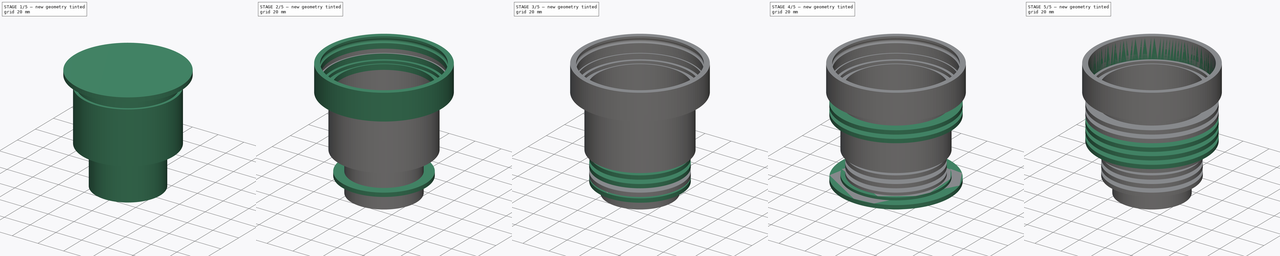
[diagram: build sequence overview — one tinted view per stage of 5, left to right]
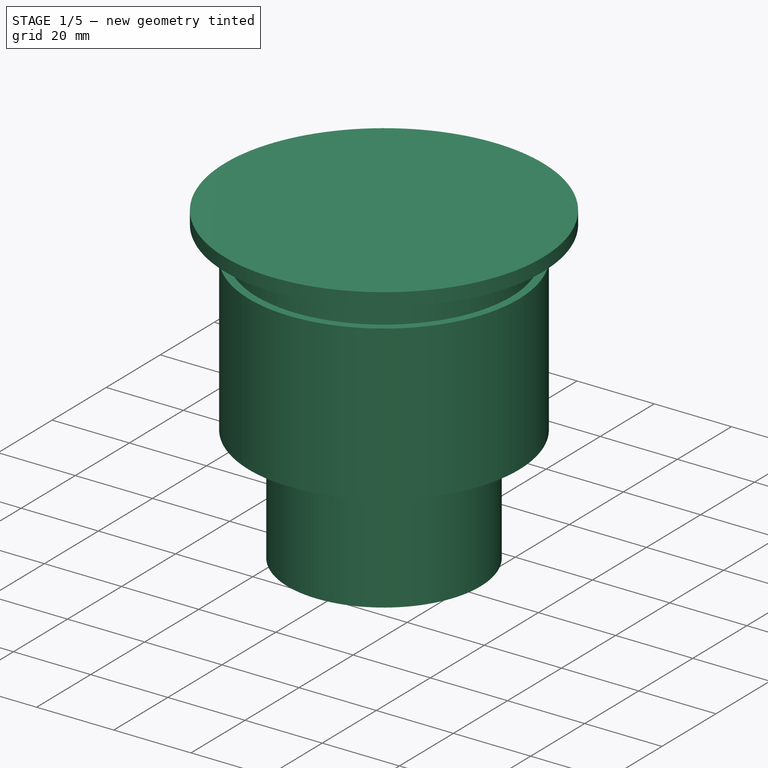
[diagram: stage 1 of 5 — iso view after this stage's code; geometry added in this stage tinted green]
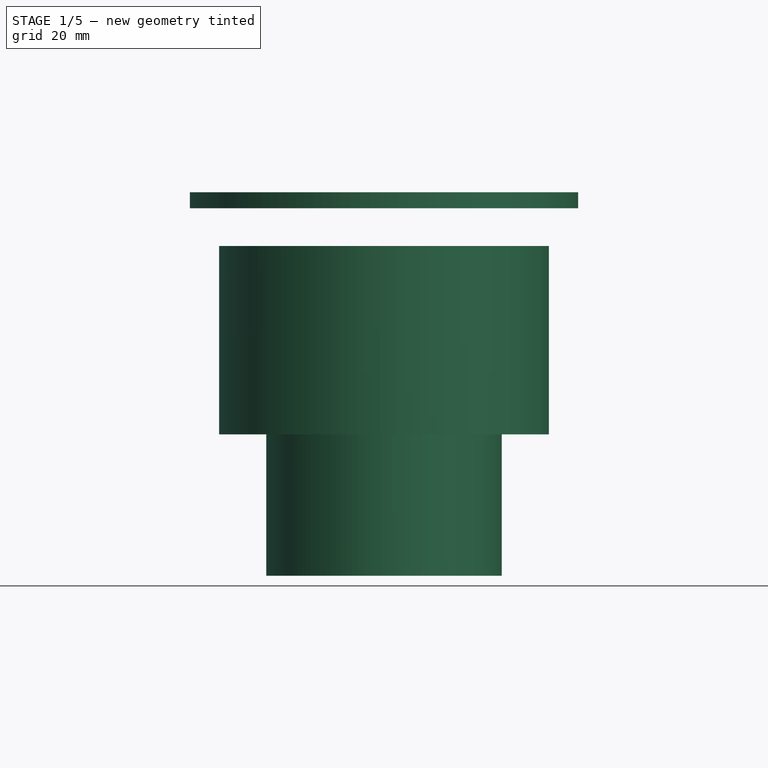
[diagram: stage 1 of 5 — front view after this stage's code; geometry added in this stage tinted green]
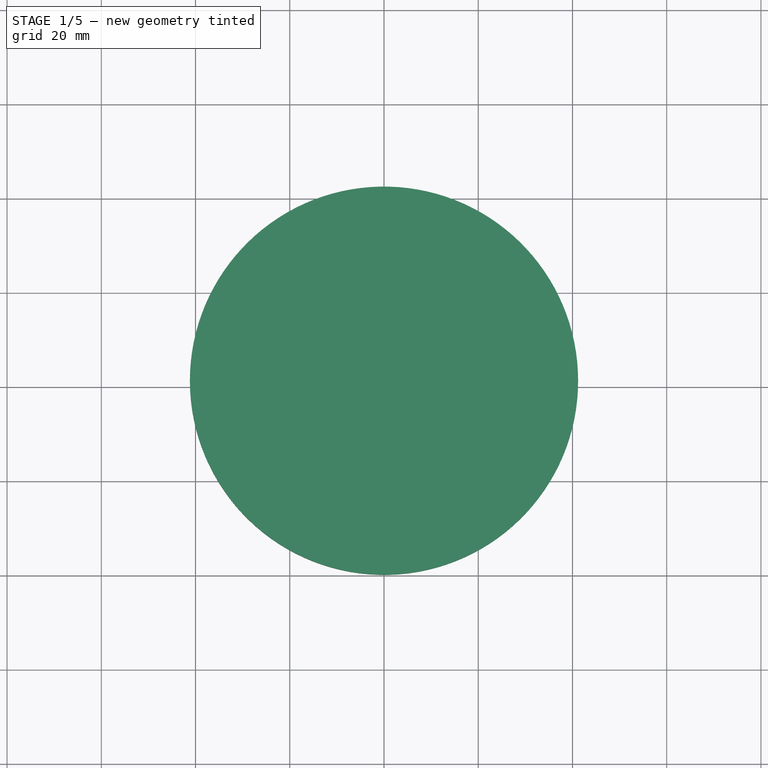
[diagram: stage 1 of 5 — top view after this stage's code; geometry added in this stage tinted green]
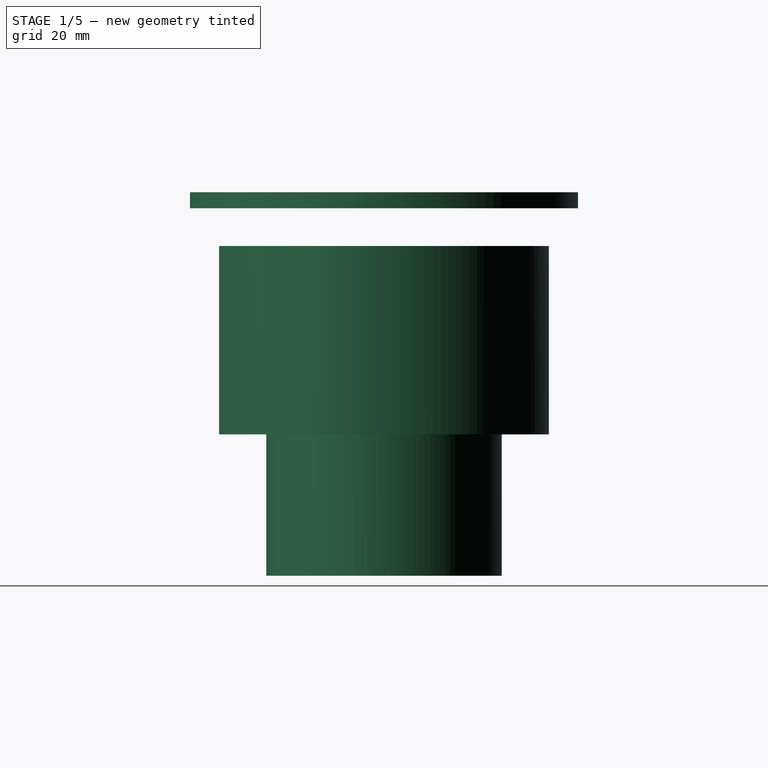
[diagram: stage 1 of 5 — right view after this stage's code; geometry added in this stage tinted green]
FCSTD DOCUMENT  (FreeCAD 0.15R4196 (Git))
Label: Korpus
License: CC-BY 3.0
LicenseURL: http://creativecommons.org/licenses/by/3.0/
objects: Part::Cylinder×19, App::FeaturePython×15, Part::Cut×11, Sketcher::SketchObject×9, PartDesign::Pad×6, App::DocumentObjectGroup×4, PartDesign::Pocket×3, PartDesign::PolarPattern×1, PartDesign::Fillet×1, Part::Torus×1
note: 60 computed .brp shape members not serialized (recipe doc carries the construction recipe); baked Part::Feature solids carry a one-line shape summary decoded from their .brp

FEATURE [Sketcher::SketchObject] Sketch
  sketch-geometry (4):
    g0: Circle CenterX=0 CenterY=0 CenterZ=0 NormalX=0 NormalY=0 NormalZ=1 Radius=25
    g1: Circle CenterX=0 CenterY=0 CenterZ=0 NormalX=0 NormalY=0 NormalZ=1 Radius=23
    g2: GeomPoint [constr] X=-25 Y=0 Z=0
    g3: GeomPoint [constr] X=-23 Y=0 Z=0
  constraints (8):
    c: Radius(g0) = 25
    c: Coincident(g0,g-1)
    c: Coincident(g1,g-1)
    c: PointOnObject(g2,g0)
    c: PointOnObject(g3,g1)
    c: PointOnObject(g2,g-1)
    c: PointOnObject(g3,g-1)
    c: Distance(g3,g2) = 2
FEATURE [PartDesign::Pad] Pad  label="Pad-Elektronikraum"
  Length = 22
  Length2 = 100
  Sketch = -> Sketch
  Type = 0
FEATURE [Sketcher::SketchObject] Sketch001
  ExternalGeometry = -> [Pad]
  Placement = pos=(0,0,0) rot=(1,0,0;3.14159rad)
  Support = -> Pad [Face3]
  sketch-geometry (1):
    g0: Circle CenterX=0 CenterY=0 CenterZ=0 NormalX=0 NormalY=0 NormalZ=1 Radius=25
  constraints (2):
    c: Coincident(g0,g-1)
    c: Equal(g0,g-3)
FEATURE [PartDesign::Pad] Pad001  label="Pad-Rueckseite"
  Length = 8
  Length2 = 100
  Sketch = -> Sketch001
  Type = 0
FEATURE [Sketcher::SketchObject] Sketch003
  Support = -> Pad001 [Face5]
  sketch-geometry (1):
    g0: Circle CenterX=0 CenterY=0 CenterZ=0 NormalX=0 NormalY=0 NormalZ=1 Radius=7
  constraints (2):
    c: Radius(g0) = 7
    c: Coincident(g0,g-1)
FEATURE [PartDesign::Pocket] Pocket  label="Kernloch M16 Kabeldurchführung"
  Length = 8
  Sketch = -> Sketch003
  Type = 0
FEATURE [Sketcher::SketchObject] Sketch004
  Placement = pos=(0,0,22) rot=(0,0,1;0rad)
  Support = -> Pocket [Face1]
  sketch-geometry (4):
    g0: Circle CenterX=0 CenterY=0 CenterZ=0 NormalX=0 NormalY=0 NormalZ=1 Radius=35
    g1: Circle CenterX=0 CenterY=0 CenterZ=0 NormalX=0 NormalY=0 NormalZ=1 Radius=23
    g2: GeomPoint [constr] X=-23 Y=0 Z=0
    g3: GeomPoint [constr] X=-35 Y=0 Z=0
  constraints (7):
    c: Coincident(g1,g0)
    c: Coincident(g0,g-1)
    c: PointOnObject(g2,g1)
    c: PointOnObject(g2,g-1)
    c: PointOnObject(g3,g0)
    c: PointOnObject(g3,g-1)
    c: Distance(g2,g3) = 12
FEATURE [PartDesign::Pad] Pad003  label="Pad-Aufnahme LED Träger"
  Length = 8
  Length2 = 100
  Sketch = -> Sketch004
  Type = 0
FEATURE [Sketcher::SketchObject] Sketch005
  ExternalGeometry = -> [Pad003]
  Placement = pos=(0,0,30) rot=(0,0,1;0rad)
  Support = -> Pad003 [Face8]
  sketch-geometry (2):
    g0: Circle CenterX=-28 CenterY=0 CenterZ=0 NormalX=0 NormalY=0 NormalZ=1 Radius=1.25
    g1: GeomPoint [constr] X=-23 Y=0 Z=0
  constraints (5):
    c: Radius(g0) = 1.25
    c: PointOnObject(g0,g-1)
    c: PointOnObject(g1,g-4)
    c: PointOnObject(g1,g-1)
    c: Distance(g1,g0) = 5
FEATURE [PartDesign::Pocket] Pocket001  label="Pocket-Kernloch M3 für LED Träger"
  Length = 6
  Sketch = -> Sketch005
  Type = 0
FEATURE [PartDesign::PolarPattern] PolarPattern  label="PolarPattern Kernloch x6"
  Angle = 360
  Axis = -> Sketch005 [N_Axis]
  Occurrences = 6
  Originals = -> [Pocket001]
FEATURE [Sketcher::SketchObject] Sketch006
  ExternalGeometry = -> [PolarPattern]
  Placement = pos=(0,0,30) rot=(0,0,1;0rad)
  Support = -> PolarPattern [Face8]
  sketch-geometry (5):
    g0: Circle CenterX=0 CenterY=0 CenterZ=0 NormalX=0 NormalY=0 NormalZ=1 Radius=35
    g1: Circle CenterX=0 CenterY=0 CenterZ=0 NormalX=0 NormalY=0 NormalZ=1 Radius=33
    g2: GeomPoint [constr] X=-33 Y=0 Z=0
    g3: GeomPoint [constr] X=-35 Y=0 Z=0
    g4: GeomPoint [constr] X=-35 Y=0 Z=0
  constraints (10):
    c: Coincident(g0,g1)
    c: Coincident(g0,g-1)
    c: PointOnObject(g2,g1)
    c: PointOnObject(g3,g0)
    c: PointOnObject(g2,g-1)
    c: PointOnObject(g3,g-1)
    c: PointOnObject(g4,g-3)
    c: PointOnObject(g4,g-1)
    c: Coincident(g3,g4)
    c: Distance(g3,g2) = 2
FEATURE [PartDesign::Pad] Pad004  label="Pad-LED Raum"
  Length = 32
  Length2 = 100
  Sketch = -> Sketch006
  Type = 0
FEATURE [Part::Cylinder] Cylinder031  label="Nut für Glas radial"
  Angle = 360
  Height = 3.4
  Placement = pos=(0,0,70) rot=(0,0,1;0rad)
  Radius = 41.2
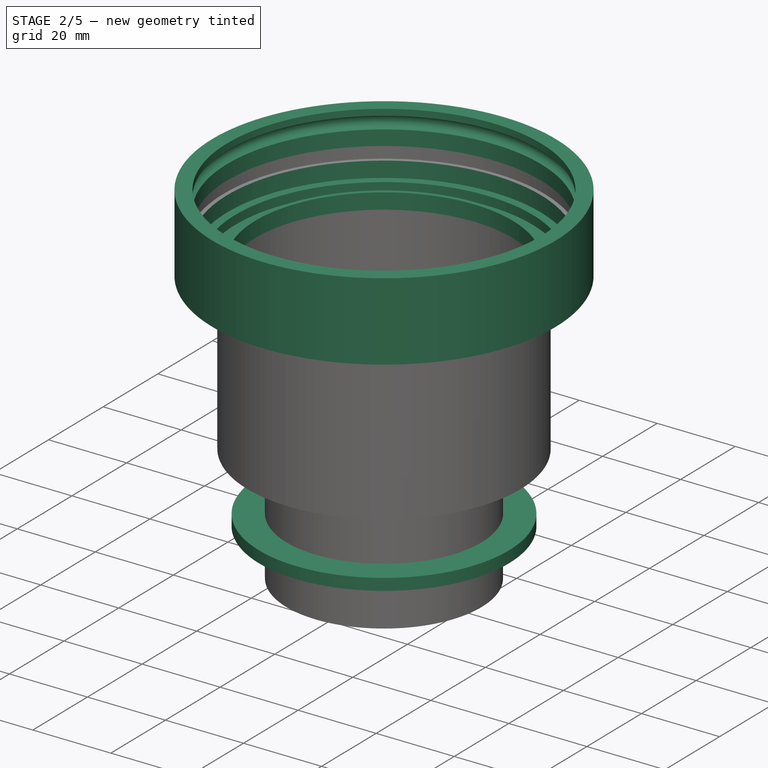
[diagram: stage 2 of 5 — iso view after this stage's code; geometry added in this stage tinted green]
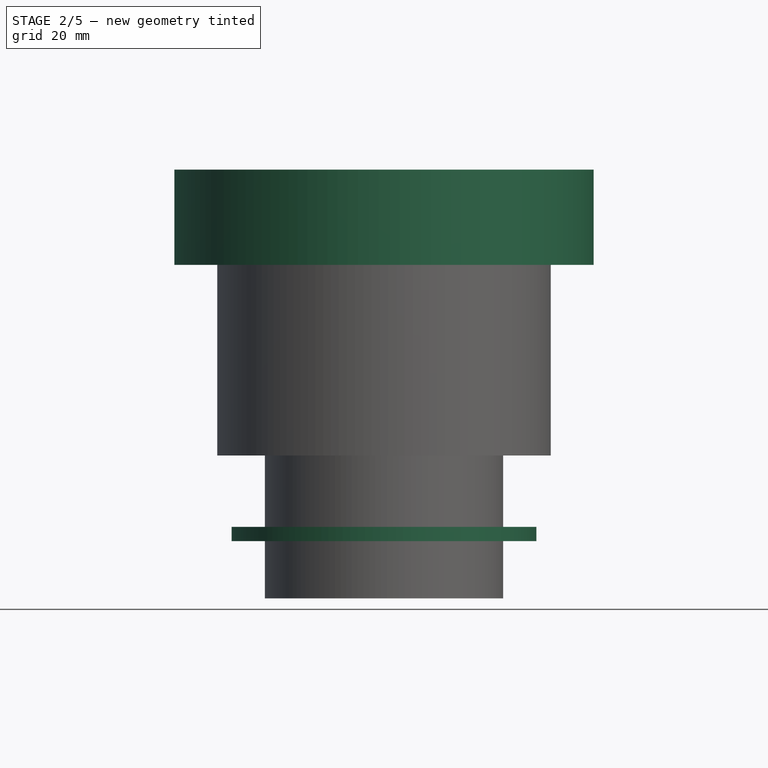
[diagram: stage 2 of 5 — front view after this stage's code; geometry added in this stage tinted green]
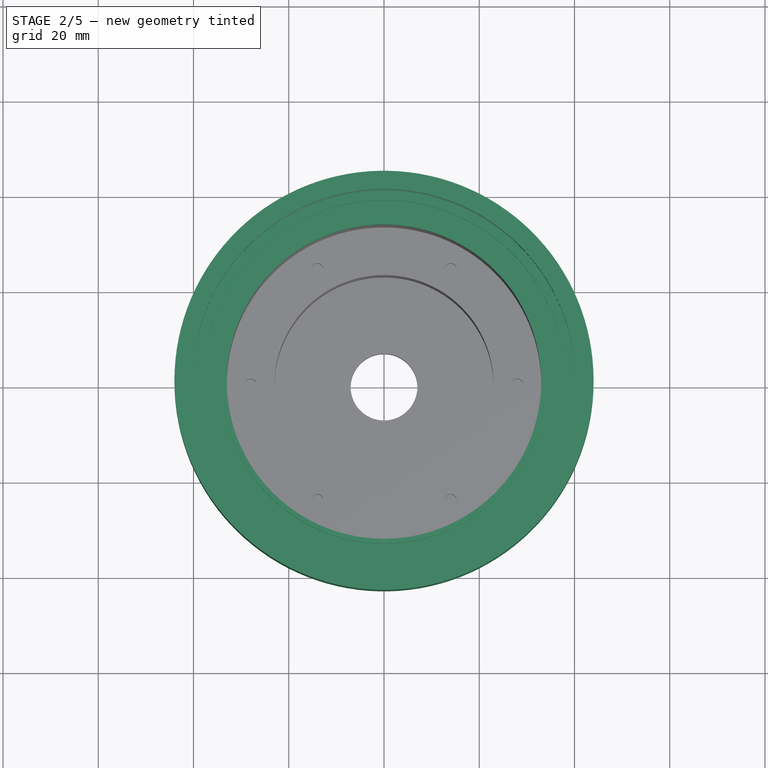
[diagram: stage 2 of 5 — top view after this stage's code; geometry added in this stage tinted green]
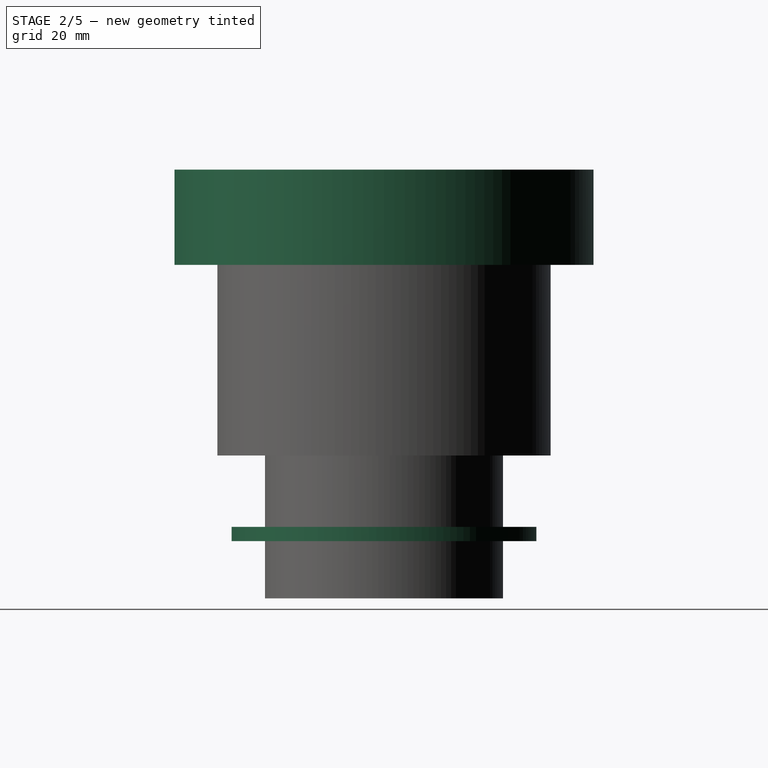
[diagram: stage 2 of 5 — right view after this stage's code; geometry added in this stage tinted green]
FEATURE [Sketcher::SketchObject] Sketch007
  ExternalGeometry = -> [Pad004]
  Placement = pos=(0,0,62) rot=(0,0,1;0rad)
  Support = -> Pad004 [Face1]
  sketch-geometry (4):
    g0: Circle CenterX=0 CenterY=0 CenterZ=0 NormalX=0 NormalY=0 NormalZ=1 Radius=44
    g1: Circle CenterX=0 CenterY=0 CenterZ=0 NormalX=0 NormalY=0 NormalZ=1 Radius=33
    g2: GeomPoint [constr] X=-33 Y=0 Z=0
    g3: GeomPoint [constr] X=-44 Y=0 Z=0
  constraints (8):
    c: Coincident(g1,g0)
    c: Coincident(g0,g-1)
    c: PointOnObject(g2,g1)
    c: PointOnObject(g3,g0)
    c: PointOnObject(g3,g-1)
    c: PointOnObject(g2,g-1)
    c: Equal(g1,g-3)
    c: Distance(g2,g3) = 11
FEATURE [PartDesign::Pad] Pad005  label="Pad-Glasauflage"
  Length = 4
  Length2 = 100
  Sketch = -> Sketch007
  Type = 0
FEATURE [Sketcher::SketchObject] Sketch008
  ExternalGeometry = -> [Pad005]
  Placement = pos=(0,0,66) rot=(0,0,1;0rad)
  Support = -> Pad005 [Face9]
  sketch-geometry (5):
    g0: Circle CenterX=0 CenterY=0 CenterZ=0 NormalX=0 NormalY=0 NormalZ=1 Radius=38.1
    g1: Circle CenterX=0 CenterY=0 CenterZ=0 NormalX=0 NormalY=0 NormalZ=1 Radius=34
    g2: GeomPoint [constr] X=-33 Y=0 Z=0
    g3: GeomPoint [constr] X=-34 Y=0 Z=0
    g4: GeomPoint [constr] X=-38.1 Y=0 Z=0
  constraints (10):
    c: Coincident(g1,g0)
    c: Coincident(g0,g-1)
    c: PointOnObject(g2,g-3)
    c: PointOnObject(g3,g1)
    c: PointOnObject(g4,g0)
    c: PointOnObject(g4,g-1)
    c: PointOnObject(g3,g-1)
    c: PointOnObject(g2,g-1)
    c: Distance(g2,g3) = 1
    c: Distance(g3,g4) = 4.1
FEATURE [PartDesign::Pocket] Pocket002  label="Pocket-Dichtring Nut Frontscheibe"
  Length = 2.3
  Sketch = -> Sketch008
  Type = 0
FEATURE [Sketcher::SketchObject] Sketch009
  Placement = pos=(0,0,66) rot=(0,0,1;0rad)
  Support = -> Pocket002 [Face9]
  sketch-geometry (4):
    g0: Circle CenterX=0 CenterY=0 CenterZ=0 NormalX=0 NormalY=0 NormalZ=1 Radius=40.2
    g1: Circle CenterX=0 CenterY=0 CenterZ=0 NormalX=0 NormalY=0 NormalZ=1 Radius=44
    g2: GeomPoint [constr] X=-40.2 Y=0 Z=0
    g3: GeomPoint [constr] X=-44 Y=0 Z=0
  constraints (8):
    c: Coincident(g1,g0)
    c: Coincident(g0,g-1)
    c: PointOnObject(g2,g0)
    c: PointOnObject(g3,g1)
    c: PointOnObject(g3,g-1)
    c: PointOnObject(g2,g-1)
    c: Distance(g3,g2) = 3.8
    c: Distance(g-1,g3) = 44
FEATURE [PartDesign::Pad] Pad006  label="Pad-Wand für Glas"
  Length = 16
  Length2 = 100
  Sketch = -> Sketch009
  Type = 0
FEATURE [App::DocumentObjectGroup] Group001  label="Korpus"
  Group = -> [Fillet,Pad,Pad001,Pocket,Pad003,Pocket001,PolarPattern,Pad004,Pad005,Pocket002,Pad006,Cylinder031]
FEATURE [Part::Torus] Torus  label="Sprengringaufnahme"
  Angle1 = -180
  Angle2 = 180
  Angle3 = 360
  Placement = pos=(0,0,78.8) rot=(0,0,1;0rad)
  Radius1 = 40
  Radius2 = 1.6
FEATURE [Part::Cylinder] Cylinder035  label="Ausschnitt Kühlrippe Elektronik017"
  Angle = 360
  Height = 5
  Radius = 25
FEATURE [Part::Cylinder] Cylinder036  label="Kühlrippe Elektronik017"
  Angle = 360
  Height = 3
  Radius = 32
FEATURE [Part::Cut] Cut019
  Base = -> Cylinder036
  Placement = pos=(0,0,4) rot=(0,0,1;0rad)
  Tool = -> Cylinder035
FEATURE [App::DocumentObjectGroup] Group002  label="Kühlrippen Elektronik"
  Group = -> [Cut014,Cut,Cut018,Cut019]
FEATURE [Part::Cut] Cut020
  Base = -> Pad006
  Tool = -> Cylinder031
FEATURE [Part::Cut] Cut021
  Base = -> Cut020
  Tool = -> Torus
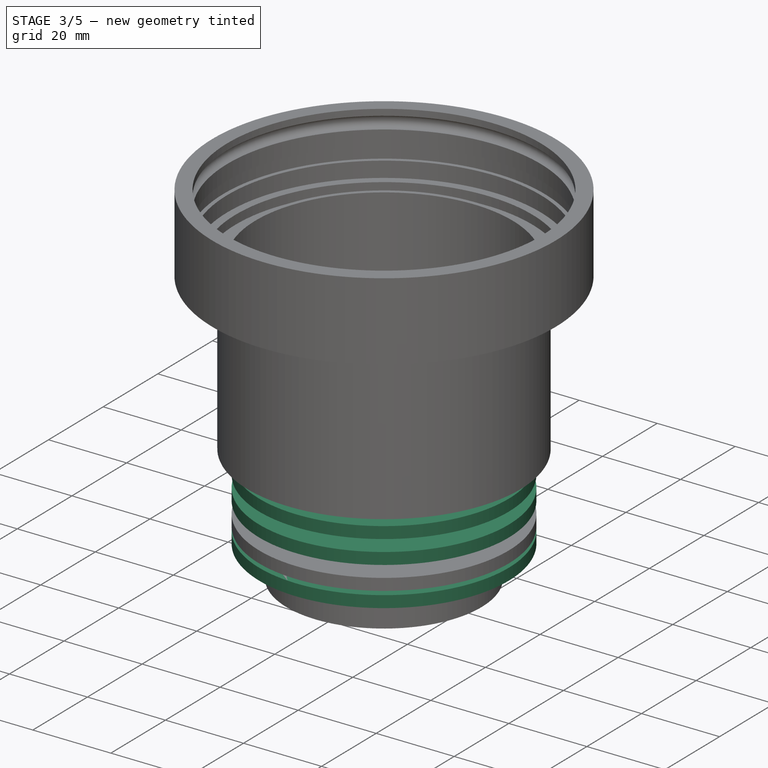
[diagram: stage 3 of 5 — iso view after this stage's code; geometry added in this stage tinted green]
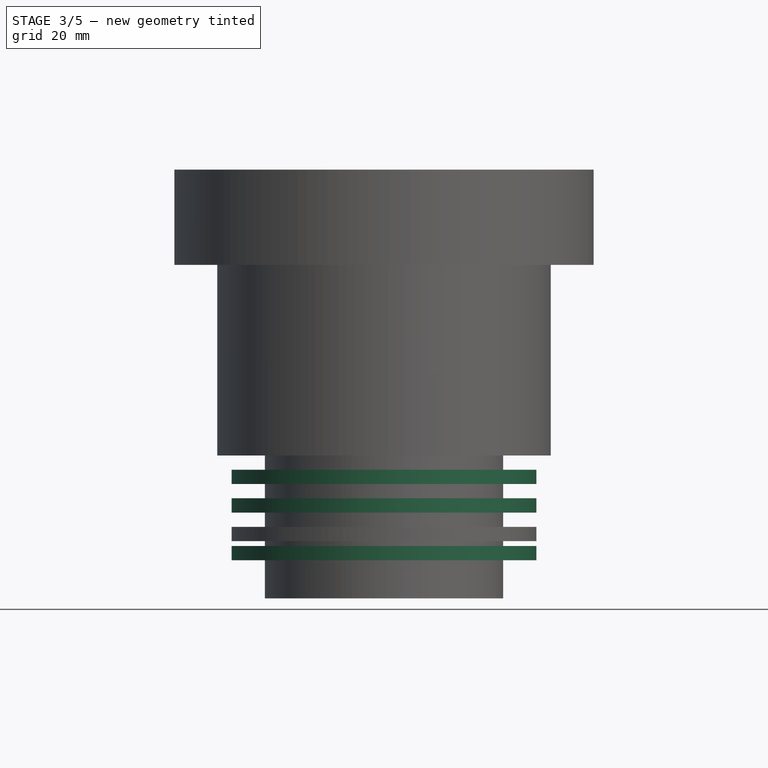
[diagram: stage 3 of 5 — front view after this stage's code; geometry added in this stage tinted green]
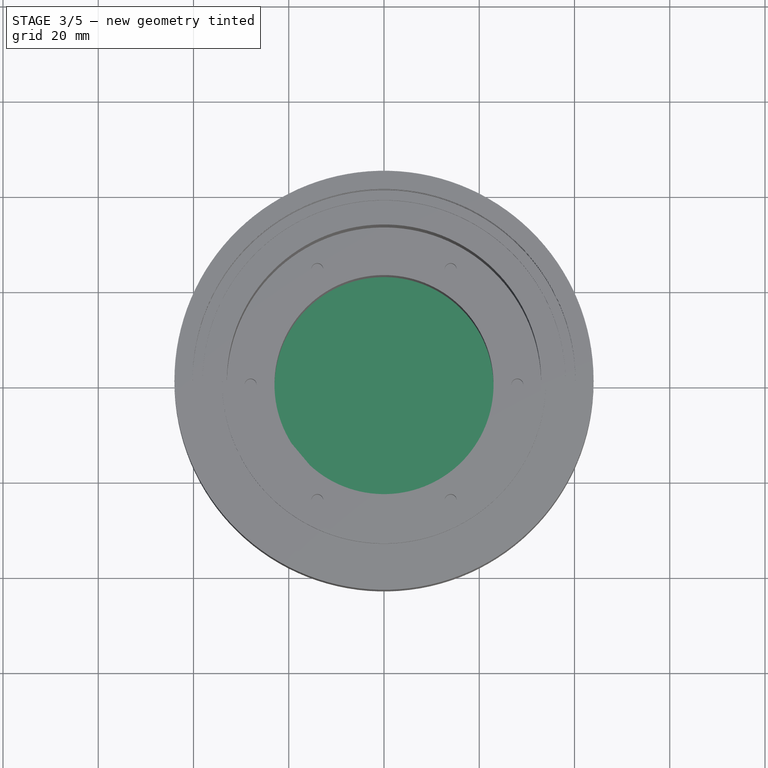
[diagram: stage 3 of 5 — top view after this stage's code; geometry added in this stage tinted green]
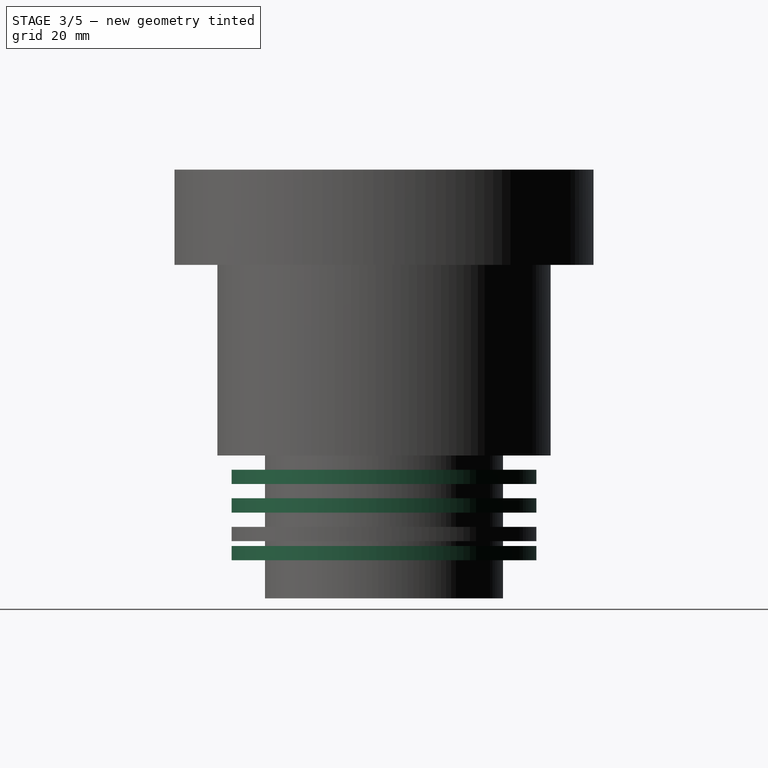
[diagram: stage 3 of 5 — right view after this stage's code; geometry added in this stage tinted green]
FEATURE [App::DocumentObjectGroup] Group003  label="Kühlrippen LED"
  Group = -> [Cut005,Cut007,Cut009,Cut011,Cut013]
FEATURE [Part::Cylinder] Cylinder028  label="Ausschnitt Kühlrippe Elektronik014"
  Angle = 360
  Height = 5
  Radius = 25
FEATURE [Part::Cylinder] Cylinder029  label="Kühlrippe Elektronik014"
  Angle = 360
  Height = 3
  Radius = 32
FEATURE [App::FeaturePython] Dimension  # Draft dimension (typed FeaturePython)
  Dimline = (40.4463,-58.197,0)
  Direction = (0,0,0)
  Distance = 88
  End = (44,0,0)
  Normal = (0,0,1)
  Start = (-44,0,0)
FEATURE [App::FeaturePython] Dimension001  # Draft dimension (typed FeaturePython)
  Dimline = (33.6555,-54.3386,0)
  Direction = (0,0,0)
  Distance = 80
  End = (40,0,0)
  Normal = (0,0,1)
  Start = (-40,0,0)
FEATURE [App::FeaturePython] Dimension002  # Draft dimension (typed FeaturePython)
  Dimline = (25.32,-50.71,0)
  Direction = (0,0,0)
  Distance = 66
  End = (33,0,0)
  Normal = (0,0,1)
  Start = (-33,0,0)
FEATURE [App::FeaturePython] Dimension003  # Draft dimension (typed FeaturePython)
  Dimline = (20.2281,-47.3934,0)
  Direction = (0,0,0)
  Distance = 46
  End = (23,0,0)
  Normal = (0,0,1)
  Start = (-23,0,0)
FEATURE [App::FeaturePython] Dimension004  # Draft dimension (typed FeaturePython)
  Dimline = (-65.5746,41.6,0)
  Direction = (0,0,0)
  Distance = 83.2
  End = (0,41.6,0)
  Normal = (0,0,1)
  Start = (0,-41.6,0)
FEATURE [App::FeaturePython] Dimension005  # Draft dimension (typed FeaturePython)
  Dimline = (-62.0248,33.9748,0)
  Direction = (0,0,0)
  Distance = 74.8
  End = (0,37.4,0)
  Normal = (0,0,1)
  Start = (0,-37.4,0)
FEATURE [App::FeaturePython] Dimension006  # Draft dimension (typed FeaturePython)
  Dimline = (-58.1664,25.7949,0)
  Direction = (0,0,0)
  Distance = 68
  End = (0,34,0)
  Normal = (0,0,1)
  Start = (0,-34,0)
FEATURE [App::FeaturePython] Dimension007  # Draft dimension (typed FeaturePython)
  Dimline = (-54.4623,4.80511,0)
  Direction = (0,0,0)
  Distance = 20
  End = (0,10,0)
  Normal = (0,0,1)
  Start = (0,-10,0)
FEATURE [App::FeaturePython] Dimension008  # Draft dimension (typed FeaturePython)
  Dimline = (-51.0669,1.56403,0)
  Direction = (0,0,0)
  Distance = 14
  End = (0,7,0)
  Normal = (0,0,1)
  Start = (0,-7,0)
FEATURE [App::FeaturePython] Dimension009  # Draft dimension (typed FeaturePython)
  Dimline = (-81,0,28.25)
  Direction = (0,0,0)
  Distance = 30
  End = (0,0,28)
  Normal = (0,-1,0)
  Start = (0,0,-2)
FEATURE [App::FeaturePython] Dimension011  # Draft dimension (typed FeaturePython)
  Dimline = (-81,0,32.46)
  Direction = (0,0,0)
  Distance = 8
  End = (0,0,36)
  Normal = (0,-1,0)
  Start = (0,0,28)
FEATURE [App::FeaturePython] Dimension012  # Draft dimension (typed FeaturePython)
  Dimline = (-81,0,64)
  Direction = (0,0,0)
  Distance = 32
  End = (0,0,68)
  Normal = (0,-1,0)
  Start = (0,0,36)
FEATURE [App::FeaturePython] Dimension013  # Draft dimension (typed FeaturePython)
  Dimline = (-81,0,72)
  Direction = (0,0,0)
  Distance = 4
  End = (0,0,72)
  Normal = (0,-1,0)
  Start = (0,0,68)
FEATURE [App::FeaturePython] Dimension014  # Draft dimension (typed FeaturePython)
  Dimline = (-81,0,83)
  Direction = (0,0,0)
  Distance = 16
  End = (0,0,88)
  Normal = (0,-1,0)
  Start = (0,0,72)
FEATURE [App::FeaturePython] Dimension015  # Draft dimension (typed FeaturePython)
  Dimline = (-87,0,87)
  Direction = (0,0,0)
  Distance = 90
  End = (0,0,88)
  Normal = (0,-1,0)
  Start = (0,0,-2)
FEATURE [App::DocumentObjectGroup] Group  label="Dimensions"
  Group = -> [Dimension,Dimension001,Dimension002,Dimension003,Dimension004,Dimension005,Dimension006,Dimension007,Dimension008,Dimension009,Dimension011,Dimension012,Dimension013,Dimension014,Dimension015]
FEATURE [Part::Cylinder] Cylinder  label="Ausschnitt Kühlrippe Elektronik015"
  Angle = 360
  Height = 5
  Radius = 25
FEATURE [Part::Cylinder] Cylinder032  label="Kühlrippe Elektronik015"
  Angle = 360
  Height = 3
  Radius = 32
FEATURE [Part::Cut] Cut
  Base = -> Cylinder032
  Placement = pos=(0,0,16) rot=(0,0,1;0rad)
  Tool = -> Cylinder
FEATURE [Part::Cylinder] Cylinder033  label="Ausschnitt Kühlrippe Elektronik016"
  Angle = 360
  Height = 5
  Radius = 25
FEATURE [Part::Cylinder] Cylinder034  label="Kühlrippe Elektronik016"
  Angle = 360
  Height = 3
  Radius = 32
FEATURE [Part::Cut] Cut018
  Base = -> Cylinder034
  Placement = pos=(0,0,10) rot=(0,0,1;0rad)
  Tool = -> Cylinder033
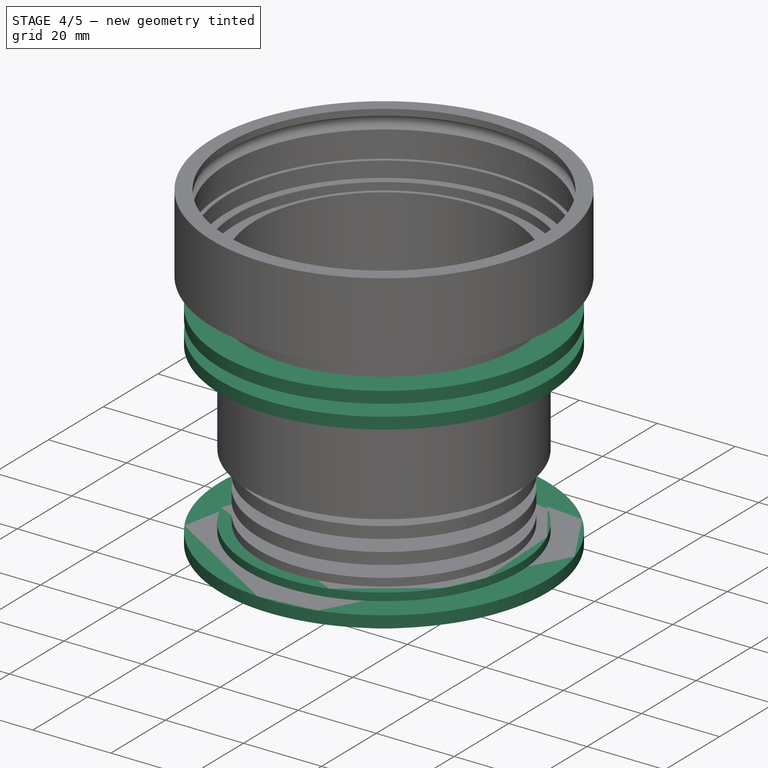
[diagram: stage 4 of 5 — iso view after this stage's code; geometry added in this stage tinted green]
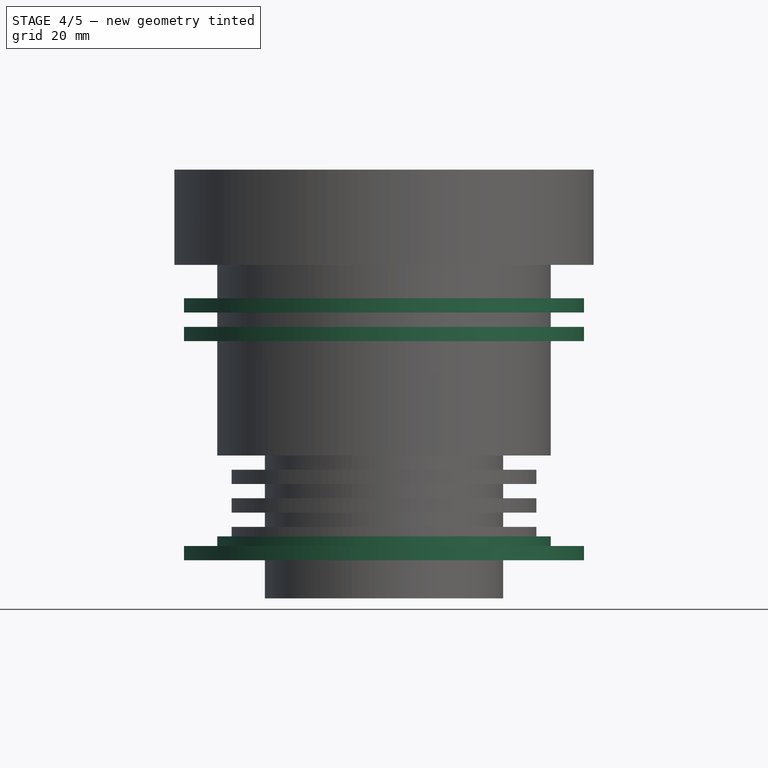
[diagram: stage 4 of 5 — front view after this stage's code; geometry added in this stage tinted green]
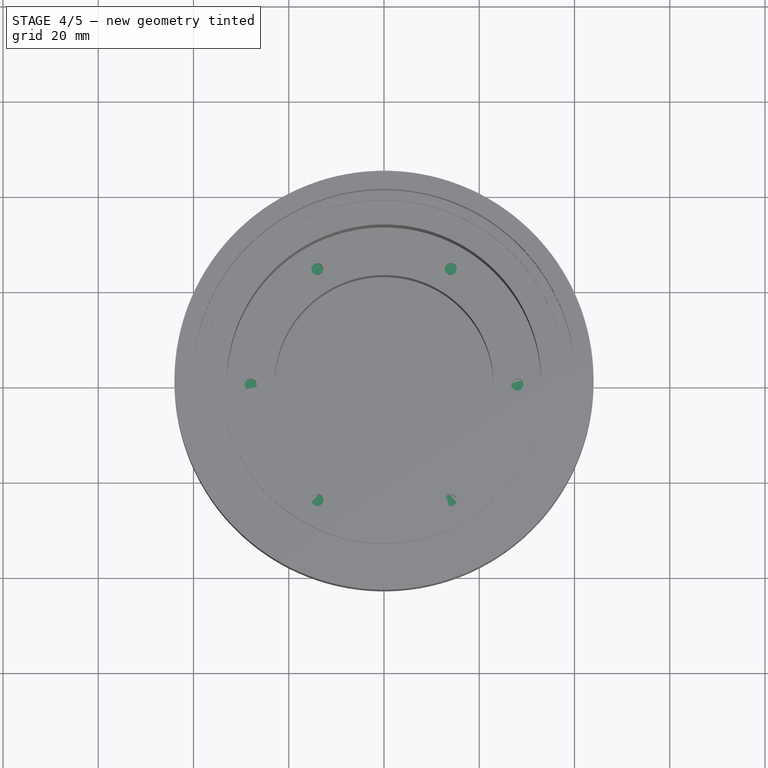
[diagram: stage 4 of 5 — top view after this stage's code; geometry added in this stage tinted green]
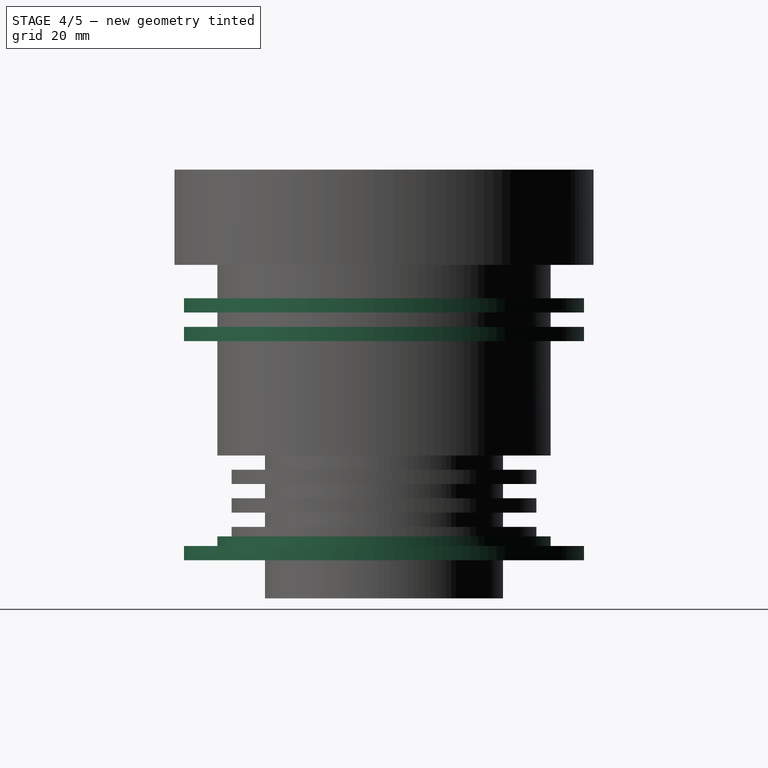
[diagram: stage 4 of 5 — right view after this stage's code; geometry added in this stage tinted green]
FEATURE [Part::Cylinder] Cylinder018  label="Ausschnitt Kühlrippe Elektronik009"
  Angle = 360
  Height = 5
  Radius = 35
FEATURE [Part::Cylinder] Cylinder019  label="Kühlrippe Elektronik009"
  Angle = 360
  Height = 3
  Radius = 42
FEATURE [Part::Cylinder] Cylinder022  label="Ausschnitt Kühlrippe Elektronik011"
  Angle = 360
  Height = 5
  Radius = 35
FEATURE [Part::Cylinder] Cylinder023  label="Kühlrippe Elektronik011"
  Angle = 360
  Height = 3
  Radius = 42
FEATURE [Part::Cut] Cut011
  Base = -> Cylinder023
  Placement = pos=(0,0,46) rot=(0,0,1;0rad)
  Tool = -> Cylinder022
FEATURE [Part::Cylinder] Cylinder026  label="Ausschnitt Kühlrippe Elektronik013"
  Angle = 360
  Height = 5
  Radius = 35
FEATURE [Part::Cylinder] Cylinder027  label="Kühlrippe Elektronik013"
  Angle = 360
  Height = 3
  Radius = 42
FEATURE [Part::Cut] Cut013
  Base = -> Cylinder027
  Placement = pos=(0,0,52) rot=(0,0,1;0rad)
  Tool = -> Cylinder026
FEATURE [Part::Cut] Cut014
  Base = -> Cylinder029
  Placement = pos=(0,0,22) rot=(0,0,1;0rad)
  Tool = -> Cylinder028
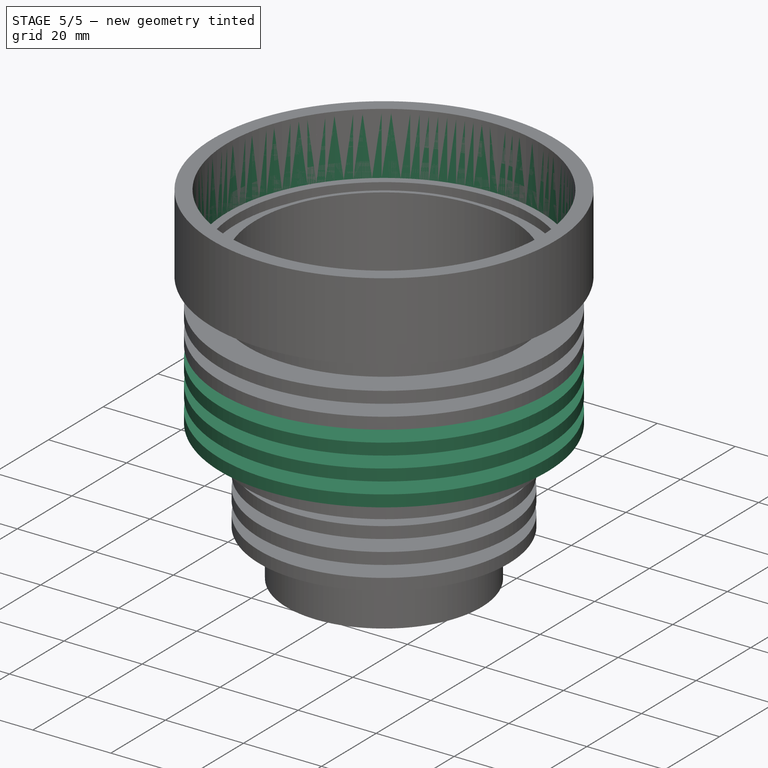
[diagram: stage 5 of 5 — iso view after this stage's code; geometry added in this stage tinted green]
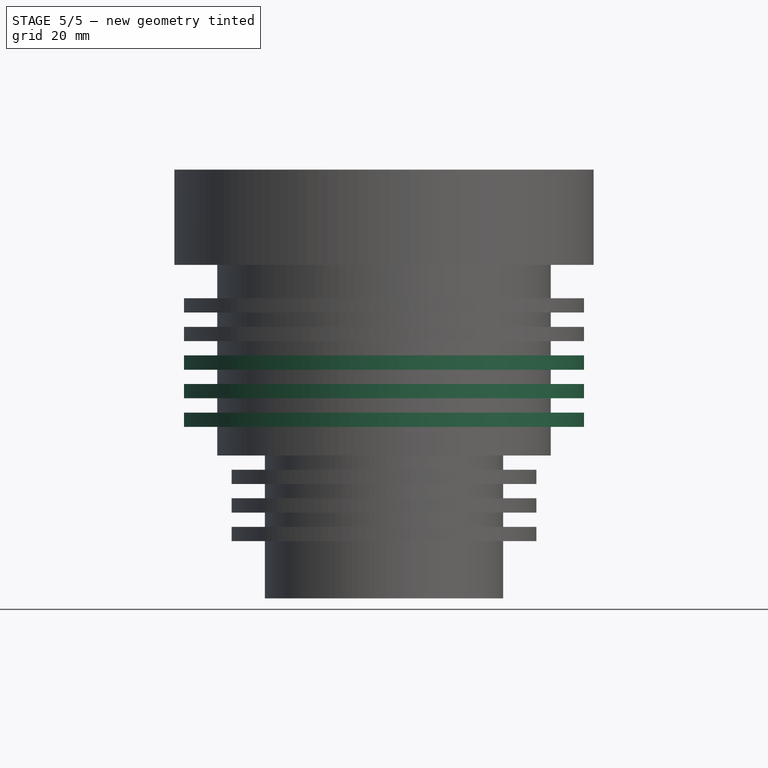
[diagram: stage 5 of 5 — front view after this stage's code; geometry added in this stage tinted green]
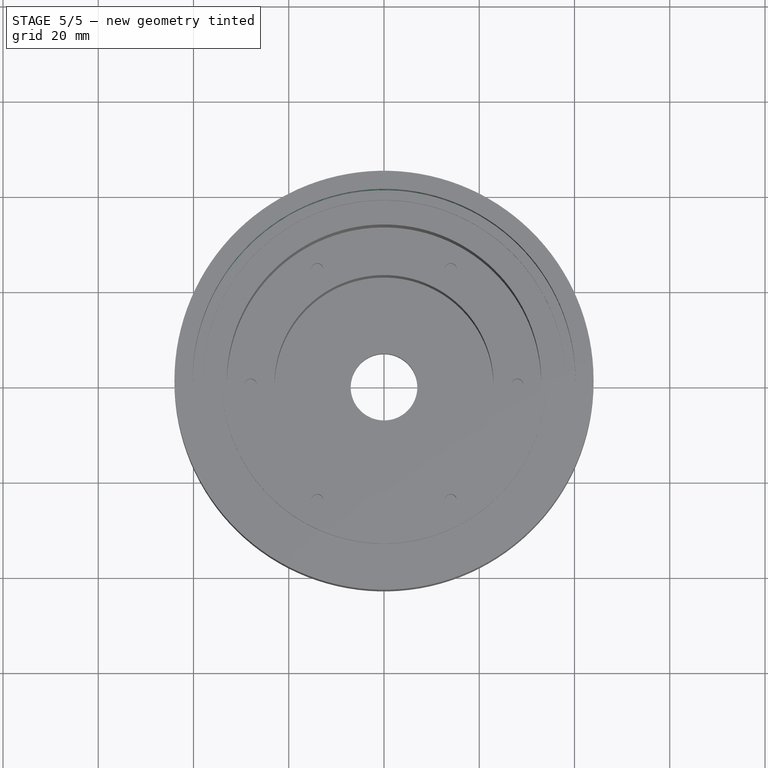
[diagram: stage 5 of 5 — top view after this stage's code; geometry added in this stage tinted green]
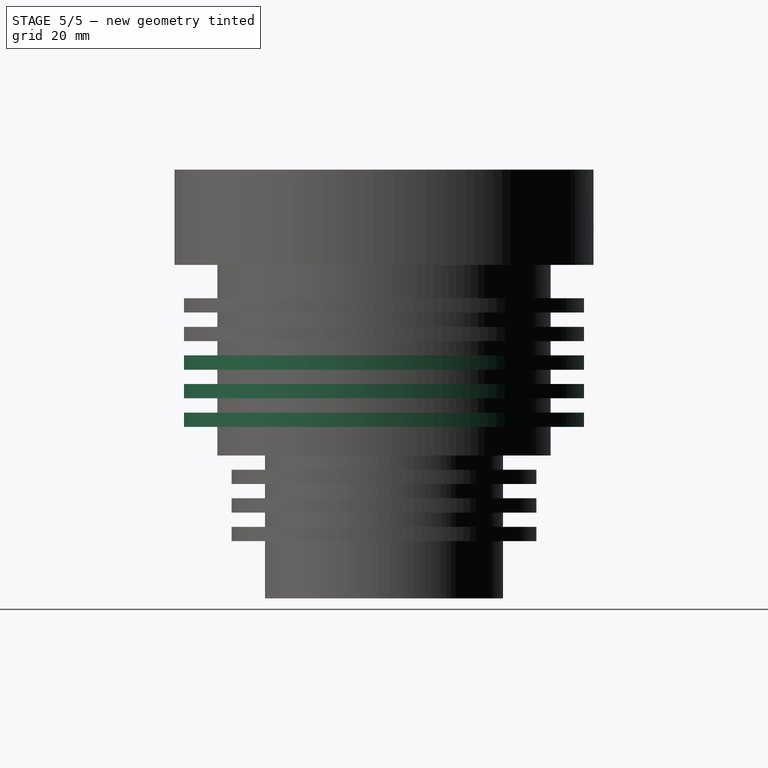
[diagram: stage 5 of 5 — right view after this stage's code; geometry added in this stage tinted green]
FEATURE [PartDesign::Fillet] Fillet
  Base = -> Pad006 [Edge16,Edge19]
  Radius = 1
FEATURE [Part::Cylinder] Cylinder010  label="Ausschnitt Kühlrippe Elektronik005"
  Angle = 360
  Height = 5
  Radius = 35
FEATURE [Part::Cylinder] Cylinder011  label="Kühlrippe Elektronik005"
  Angle = 360
  Height = 3
  Radius = 42
FEATURE [Part::Cut] Cut005
  Base = -> Cylinder011
  Placement = pos=(0,0,28) rot=(0,0,1;0rad)
  Tool = -> Cylinder010
FEATURE [Part::Cylinder] Cylinder014  label="Ausschnitt Kühlrippe Elektronik007"
  Angle = 360
  Height = 5
  Radius = 35
FEATURE [Part::Cylinder] Cylinder015  label="Kühlrippe Elektronik007"
  Angle = 360
  Height = 3
  Radius = 42
FEATURE [Part::Cut] Cut007
  Base = -> Cylinder015
  Placement = pos=(0,0,34) rot=(0,0,1;0rad)
  Tool = -> Cylinder014
FEATURE [Part::Cut] Cut009
  Base = -> Cylinder019
  Placement = pos=(0,0,40) rot=(0,0,1;0rad)
  Tool = -> Cylinder018
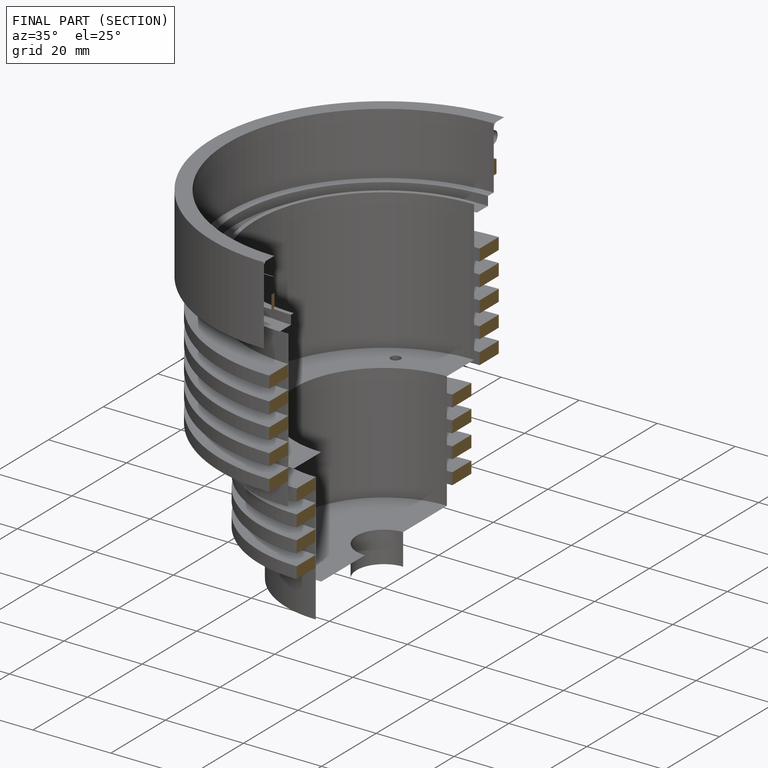
[diagram: finished part — half-section view (interior)]
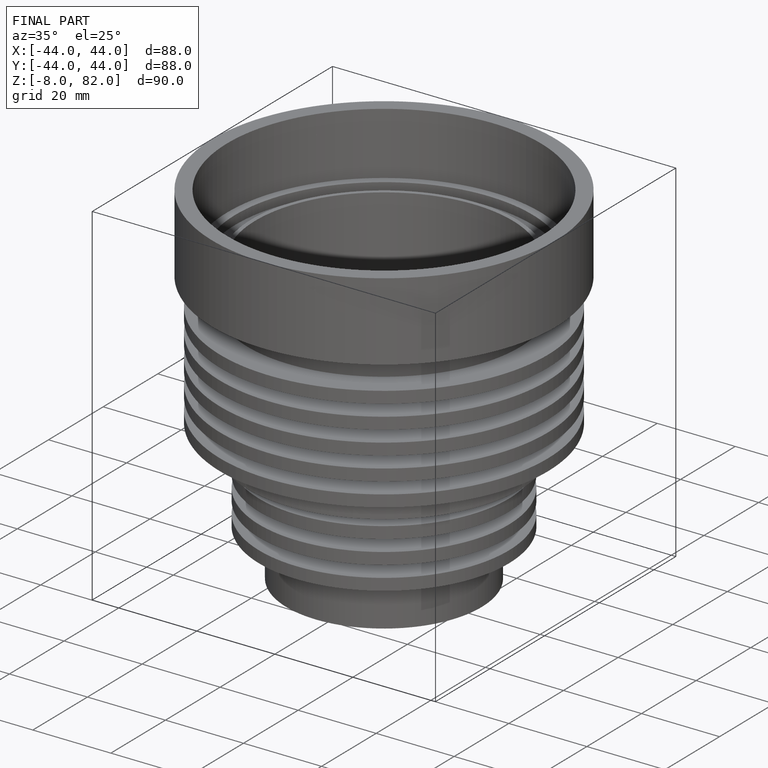
[diagram: finished part — iso view with bounding-box wireframe]
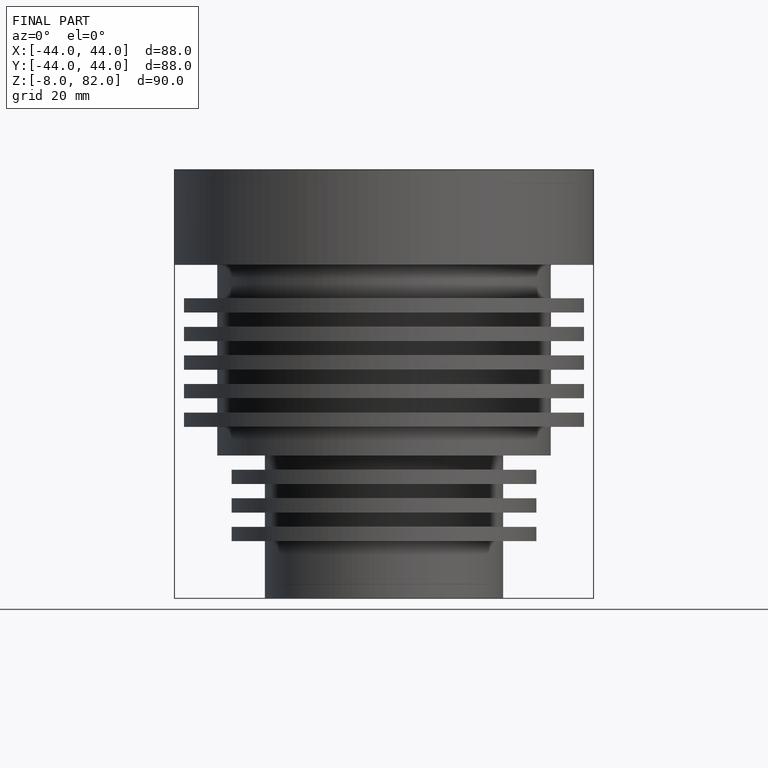
[diagram: finished part — front view with bounding-box wireframe]
